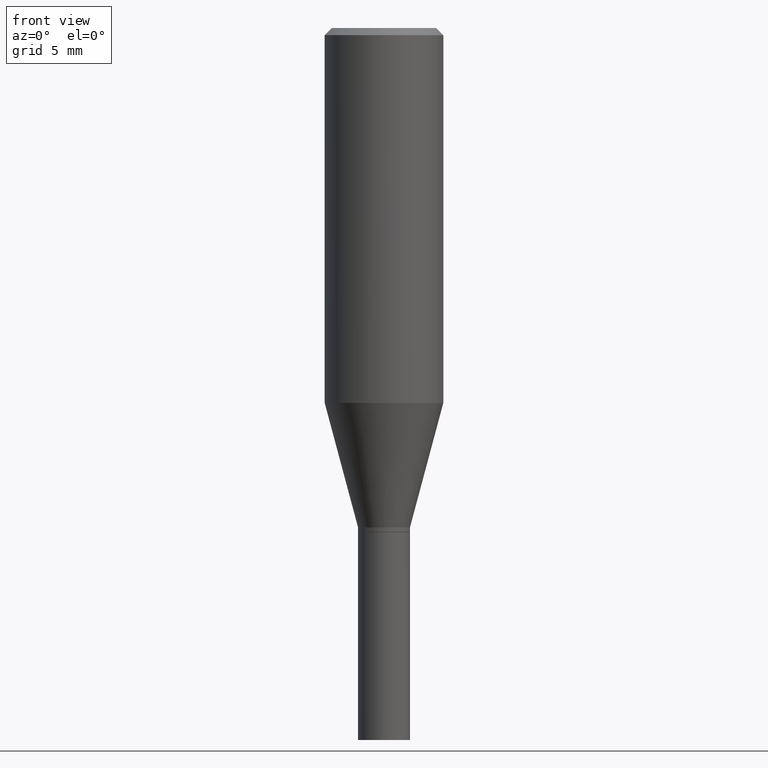
[diagram: clean part render]
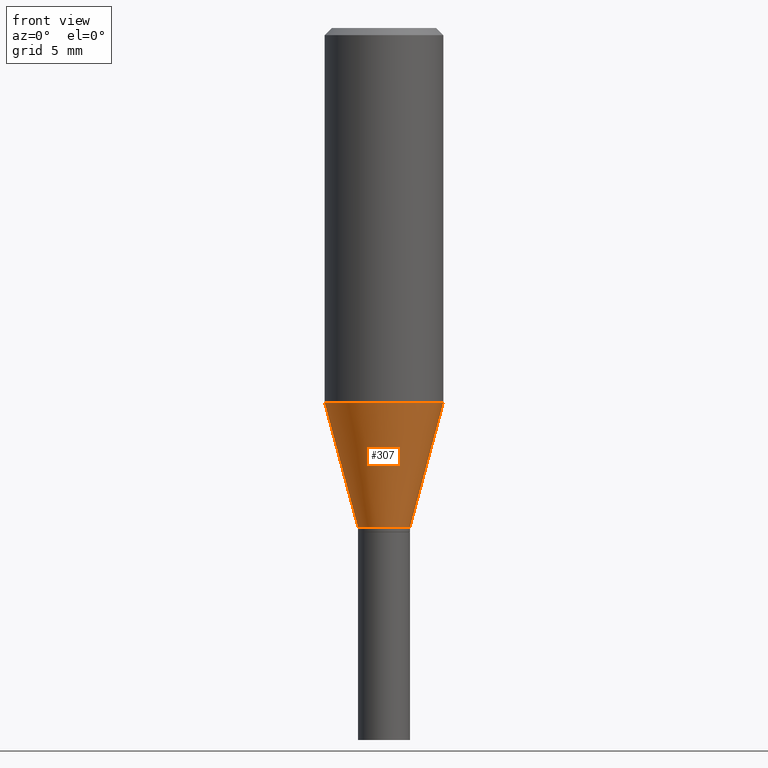
[diagram: same view with one face highlighted and labeled with its STEP entity id]
A machine part, front view. The second image highlights one B-rep face of the part: STEP entity #307.
In plain terms, the highlighted conical surface has half-angle 15 deg.
Its self-contained STEP definition (entity closure, byte-faithful):
#5 = CARTESIAN_POINT ( 'NONE',  ( 2.572633184106763848E-29, -3.673038368462989448E-15, -1.052000000000000046 ) ) ;
#29 = CARTESIAN_POINT ( 'NONE',  ( -0.1250000000000000000, -1.868823830520909276E-15, -0.7896368282279090378 ) ) ;
#36 = EDGE_CURVE ( 'NONE', #188, #43, #221, .T. ) ;
#43 = VERTEX_POINT ( 'NONE', #92 ) ;
#46 = DIRECTION ( 'NONE',  ( -2.445468806185136597E-29, 3.491481338843145583E-15, 1.000000000000000000 ) ) ;
#55 = DIRECTION ( 'NONE',  ( 1.000000000000000000, -6.982962677686266711E-15, 0.000000000000000000 ) ) ;
#64 = LINE ( 'NONE', #66, #337 ) ;
#66 = CARTESIAN_POINT ( 'NONE',  ( 0.05470000000000007495, -4.055006426932429417E-15, -1.052000000000000046 ) ) ;
#78 = VERTEX_POINT ( 'NONE', #458 ) ;
#82 = CIRCLE ( 'NONE', #440, 0.05470000000000007495 ) ;
#92 = CARTESIAN_POINT ( 'NONE',  ( 0.1250000000000000000, -3.629872584931818241E-15, -0.7896368282279090378 ) ) ;
#126 = CARTESIAN_POINT ( 'NONE',  ( 1.931032231646322477E-29, -2.757002250221034902E-15, -0.7896368282279090378 ) ) ;
#140 = FACE_OUTER_BOUND ( 'NONE', #153, .T. ) ;
#147 = DIRECTION ( 'NONE',  ( -2.445468806185136597E-29, 3.491481338843145583E-15, 1.000000000000000000 ) ) ;
#153 = EDGE_LOOP ( 'NONE', ( #335, #301, #177, #321 ) ) ;
#177 = ORIENTED_EDGE ( 'NONE', *, *, #240, .T. ) ;
#188 = VERTEX_POINT ( 'NONE', #29 ) ;
#207 = DIRECTION ( 'NONE',  ( 0.2588190451025213501, 1.565188264969621968E-15, 0.9659258262890682012 ) ) ;
#221 = CIRCLE ( 'NONE', #439, 0.1250000000000000000 ) ;
#238 = VERTEX_POINT ( 'NONE', #380 ) ;
#240 = EDGE_CURVE ( 'NONE', #78, #43, #64, .T. ) ;
#252 = CARTESIAN_POINT ( 'NONE',  ( -0.05470000000000007495, -3.284371492002214064E-15, -1.052000000000000046 ) ) ;
#263 = CONICAL_SURFACE ( 'NONE', #432, 0.05470000000000007495, 0.2617993877991500740 ) ;
#265 = DIRECTION ( 'NONE',  ( -2.445468806185136597E-29, 3.491481338843145583E-15, 1.000000000000000000 ) ) ;
#287 = DIRECTION ( 'NONE',  ( 1.000000000000000000, -6.982962677686268288E-15, 0.000000000000000000 ) ) ;
#301 = ORIENTED_EDGE ( 'NONE', *, *, #386, .T. ) ;
#307 = ADVANCED_FACE ( 'NONE', ( #140 ), #263, .T. ) ;
#315 = DIRECTION ( 'NONE',  ( 1.000000000000000000, -6.982962677686268288E-15, 0.000000000000000000 ) ) ;
#321 = ORIENTED_EDGE ( 'NONE', *, *, #36, .F. ) ;
#335 = ORIENTED_EDGE ( 'NONE', *, *, #399, .F. ) ;
#337 = VECTOR ( 'NONE', #207, 39.37007874015747433 ) ;
#364 = CARTESIAN_POINT ( 'NONE',  ( 2.572633184106763848E-29, -3.673038368462989448E-15, -1.052000000000000046 ) ) ;
#380 = CARTESIAN_POINT ( 'NONE',  ( -0.05470000000000007495, -2.576597661261561867E-15, -1.052000000000000046 ) ) ;
#386 = EDGE_CURVE ( 'NONE', #238, #78, #82, .T. ) ;
#399 = EDGE_CURVE ( 'NONE', #238, #188, #436, .T. ) ;
#400 = DIRECTION ( 'NONE',  ( -0.2588190451025213501, 5.211531920934551042E-15, 0.9659258262890682012 ) ) ;
#402 = VECTOR ( 'NONE', #400, 39.37007874015747433 ) ;
#432 = AXIS2_PLACEMENT_3D ( 'NONE', #364, #46, #315 ) ;
#436 = LINE ( 'NONE', #252, #402 ) ;
#439 = AXIS2_PLACEMENT_3D ( 'NONE', #126, #265, #55 ) ;
#440 = AXIS2_PLACEMENT_3D ( 'NONE', #5, #147, #287 ) ;
#458 = CARTESIAN_POINT ( 'NONE',  ( 0.05470000000000007495, -4.055006426932429417E-15, -1.052000000000000046 ) ) ;